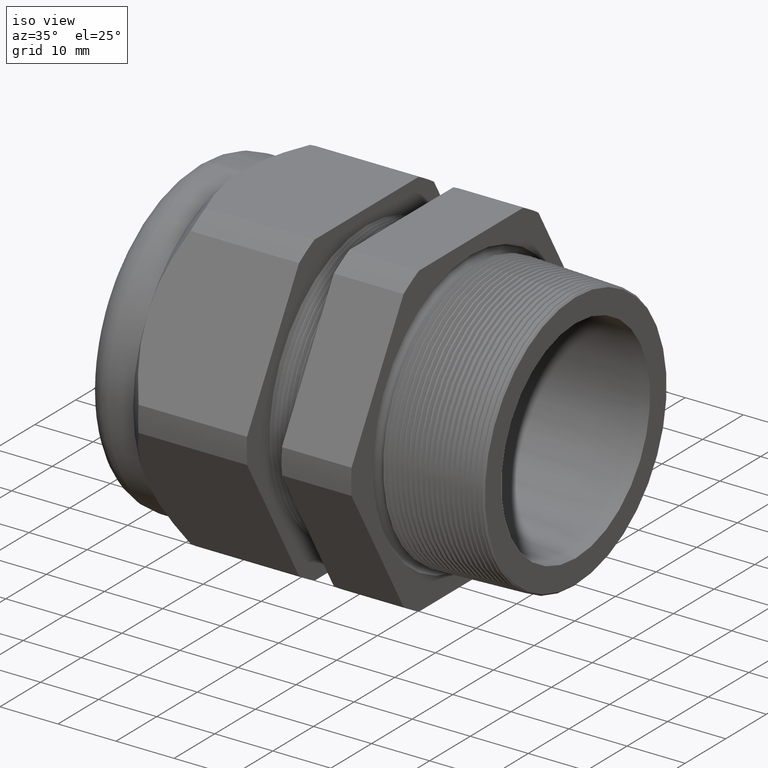
[diagram: clean part render]
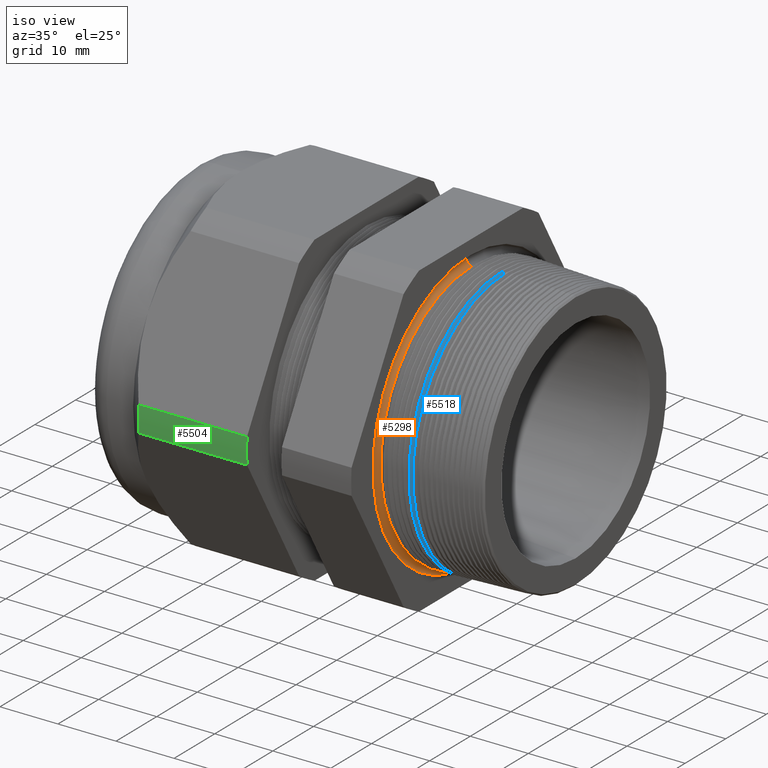
[diagram: same view with three faces highlighted in distinct colors, each labeled with its STEP entity id]
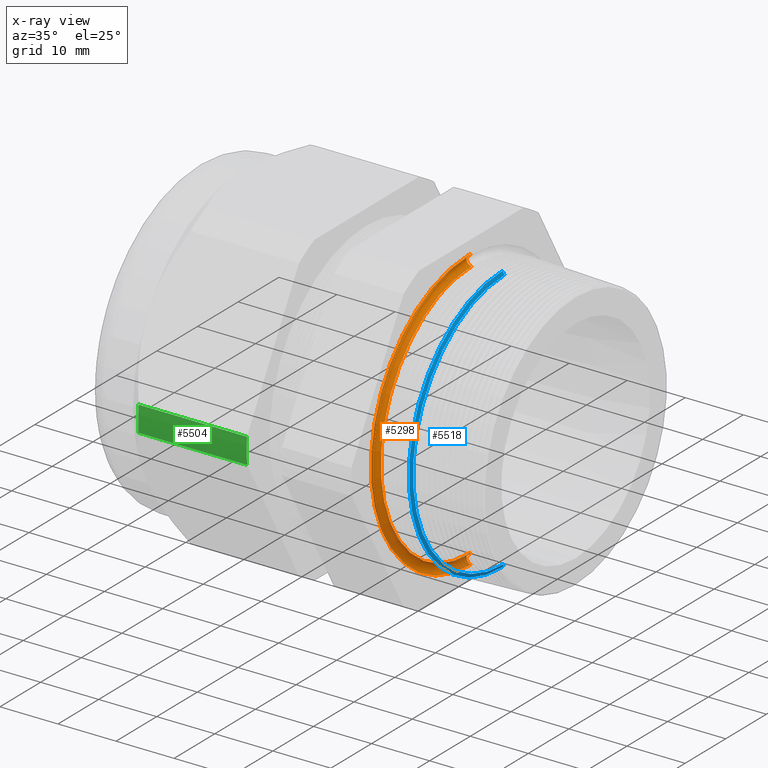
[diagram: x-ray of the same camera — body ghosted, the three highlighted faces saturated]
A machine part, iso view with three faces highlighted in distinct colors.
The next image is the same camera in x-ray (body ghosted, the three faces saturated) — at least one of them is partly hidden behind the body in this view.
Their STEP definitions:

[orange] entity #5298 — the highlighted toroidal blend (fillet) surface has major radius 23.2473 mm and minor (blend) radius 0.889 mm.
#448 = VERTEX_POINT ( 'NONE', #1275 ) ;
#452 = VERTEX_POINT ( 'NONE', #1267 ) ;
#1267 = CARTESIAN_POINT ( 'NONE',  ( -0.3049999999999999400, 0.0000000000000000000, -0.8802480608060996300 ) ) ;
#1275 = CARTESIAN_POINT ( 'NONE',  ( -0.3049999999999999400, 1.077992970121854900E-016, 0.8802480608060996300 ) ) ;
#5234 = EDGE_CURVE ( 'NONE', #452, #5362, #6086, .T. ) ;
#5236 = ORIENTED_EDGE ( 'NONE', *, *, #5234, .F. ) ;
#5293 = ORIENTED_EDGE ( 'NONE', *, *, #5319, .F. ) ;
#5298 = ADVANCED_FACE ( 'NONE', ( #6246 ), #6245, .F. ) ;
#5299 = EDGE_LOOP ( 'NONE', ( #5293, #5315, #5355, #5236 ) ) ;
#5306 = EDGE_CURVE ( 'NONE', #448, #5366, #6239, .T. ) ;
#5315 = ORIENTED_EDGE ( 'NONE', *, *, #5306, .T. ) ;
#5319 = EDGE_CURVE ( 'NONE', #448, #452, #6285, .T. ) ;
#5355 = ORIENTED_EDGE ( 'NONE', *, *, #5363, .T. ) ;
#5362 = VERTEX_POINT ( 'NONE', #6369 ) ;
#5363 = EDGE_CURVE ( 'NONE', #5366, #5362, #6368, .T. ) ;
#5366 = VERTEX_POINT ( 'NONE', #6363 ) ;
#6078 = DIRECTION ( 'NONE',  ( 0.0000000000000000000, 0.0000000000000000000, -1.000000000000000000 ) ) ;
#6079 = DIRECTION ( 'NONE',  ( 0.0000000000000000000, -1.000000000000000000, 0.0000000000000000000 ) ) ;
#6080 = CARTESIAN_POINT ( 'NONE',  ( -0.3049999999999999400, 0.0000000000000000000, -0.9152480608060996600 ) ) ;
#6081 = AXIS2_PLACEMENT_3D ( 'NONE', #6080, #6079, #6078 ) ;
#6086 = CIRCLE ( 'NONE', #6081, 0.03500000000000003800 ) ;
#6236 = DIRECTION ( 'NONE',  ( 0.0000000000000000000, 1.224646799147352500E-016, 1.000000000000000000 ) ) ;
#6237 = DIRECTION ( 'NONE',  ( 0.0000000000000000000, 1.000000000000000000, -1.224646799147353200E-016 ) ) ;
#6238 = AXIS2_PLACEMENT_3D ( 'NONE', #6244, #6237, #6236 ) ;
#6239 = CIRCLE ( 'NONE', #6238, 0.03500000000000003800 ) ;
#6240 = DIRECTION ( 'NONE',  ( 0.0000000000000000000, 0.0000000000000000000, -1.000000000000000000 ) ) ;
#6241 = DIRECTION ( 'NONE',  ( 1.000000000000000000, 0.0000000000000000000, 0.0000000000000000000 ) ) ;
#6242 = CARTESIAN_POINT ( 'NONE',  ( -0.3049999999999999400, 0.0000000000000000000, 0.0000000000000000000 ) ) ;
#6243 = AXIS2_PLACEMENT_3D ( 'NONE', #6242, #6241, #6240 ) ;
#6244 = CARTESIAN_POINT ( 'NONE',  ( -0.3049999999999999400, 1.120855608092012100E-016, 0.9152480608060996600 ) ) ;
#6245 = TOROIDAL_SURFACE ( 'NONE', #6243, 0.9152480608060996600, 0.03499999999999997600 ) ;
#6246 = FACE_OUTER_BOUND ( 'NONE', #5299, .T. ) ;
#6281 = DIRECTION ( 'NONE',  ( 0.0000000000000000000, 0.0000000000000000000, -1.000000000000000000 ) ) ;
#6282 = DIRECTION ( 'NONE',  ( 1.000000000000000000, 0.0000000000000000000, 0.0000000000000000000 ) ) ;
#6283 = CARTESIAN_POINT ( 'NONE',  ( -0.3049999999999999400, 0.0000000000000000000, 0.0000000000000000000 ) ) ;
#6284 = AXIS2_PLACEMENT_3D ( 'NONE', #6283, #6282, #6281 ) ;
#6285 = CIRCLE ( 'NONE', #6284, 0.8802480608060996300 ) ;
#6363 = CARTESIAN_POINT ( 'NONE',  ( -0.3100000000000000000, 1.163278617641008500E-016, 0.9498890769574771500 ) ) ;
#6364 = DIRECTION ( 'NONE',  ( 0.0000000000000000000, 0.0000000000000000000, -1.000000000000000000 ) ) ;
#6365 = DIRECTION ( 'NONE',  ( 1.000000000000000000, 0.0000000000000000000, 0.0000000000000000000 ) ) ;
#6366 = CARTESIAN_POINT ( 'NONE',  ( -0.3100000000000000000, 0.0000000000000000000, 0.0000000000000000000 ) ) ;
#6367 = AXIS2_PLACEMENT_3D ( 'NONE', #6366, #6365, #6364 ) ;
#6368 = CIRCLE ( 'NONE', #6367, 0.9498890769574771500 ) ;
#6369 = CARTESIAN_POINT ( 'NONE',  ( -0.3100000000000000000, 0.0000000000000000000, -0.9498890769574771500 ) ) ;

[blue] entity #5518 — the highlighted conical surface has half-angle 62 deg.
#101 = VERTEX_POINT ( 'NONE', #710 ) ;
#103 = VERTEX_POINT ( 'NONE', #709 ) ;
#161 = EDGE_CURVE ( 'NONE', #103, #514, #814, .T. ) ;
#164 = VERTEX_POINT ( 'NONE', #810 ) ;
#508 = EDGE_CURVE ( 'NONE', #101, #164, #1416, .T. ) ;
#514 = VERTEX_POINT ( 'NONE', #1406 ) ;
#709 = CARTESIAN_POINT ( 'NONE',  ( -0.08373702801092107500, 0.0000000000000000000, 0.8846618589810537600 ) ) ;
#710 = CARTESIAN_POINT ( 'NONE',  ( -0.08373702801092107500, 1.097551618510998100E-016, -0.8846618589810537600 ) ) ;
#810 = CARTESIAN_POINT ( 'NONE',  ( -0.09602701323886063400, 1.111877913967415300E-016, -0.9077759594579546400 ) ) ;
#811 = DIRECTION ( 'NONE',  ( -0.4694715627859006300, 0.0000000000000000000, 0.8829475928589217700 ) ) ;
#812 = VECTOR ( 'NONE', #811, 39.37007874015748900 ) ;
#813 = CARTESIAN_POINT ( 'NONE',  ( -0.09999999999999996400, 0.0000000000000000000, 0.9152480608060996600 ) ) ;
#814 = LINE ( 'NONE', #813, #812 ) ;
#1406 = CARTESIAN_POINT ( 'NONE',  ( -0.09602701323886063400, 0.0000000000000000000, 0.9077759594579546400 ) ) ;
#1413 = DIRECTION ( 'NONE',  ( -0.4694715627859006300, 1.081298943409538900E-016, -0.8829475928589217700 ) ) ;
#1414 = VECTOR ( 'NONE', #1413, 39.37007874015748900 ) ;
#1415 = CARTESIAN_POINT ( 'NONE',  ( -0.09999999999999996400, 1.120855608092012100E-016, -0.9152480608060996600 ) ) ;
#1416 = LINE ( 'NONE', #1415, #1414 ) ;
#3404 = ORIENTED_EDGE ( 'NONE', *, *, #161, .T. ) ;
#3405 = ORIENTED_EDGE ( 'NONE', *, *, #5745, .T. ) ;
#4058 = DIRECTION ( 'NONE',  ( 0.0000000000000000000, 0.0000000000000000000, -1.000000000000000000 ) ) ;
#4059 = DIRECTION ( 'NONE',  ( 1.000000000000000000, 0.0000000000000000000, 0.0000000000000000000 ) ) ;
#4060 = AXIS2_PLACEMENT_3D ( 'NONE', #4066, #4059, #4058 ) ;
#4061 = CIRCLE ( 'NONE', #4060, 0.8846618589810537600 ) ;
#4066 = CARTESIAN_POINT ( 'NONE',  ( -0.08373702801092107500, 0.0000000000000000000, 0.0000000000000000000 ) ) ;
#4116 = CARTESIAN_POINT ( 'NONE',  ( -0.09602701323886063400, 0.0000000000000000000, 0.0000000000000000000 ) ) ;
#4118 = AXIS2_PLACEMENT_3D ( 'NONE', #4116, #4367, #4361 ) ;
#4190 = DIRECTION ( 'NONE',  ( 0.0000000000000000000, 0.0000000000000000000, 1.000000000000000000 ) ) ;
#4191 = DIRECTION ( 'NONE',  ( -1.000000000000000000, 0.0000000000000000000, 0.0000000000000000000 ) ) ;
#4192 = AXIS2_PLACEMENT_3D ( 'NONE', #4198, #4191, #4190 ) ;
#4193 = CONICAL_SURFACE ( 'NONE', #4192, 0.9152480608060996600, 1.082104136236473200 ) ;
#4194 = FACE_OUTER_BOUND ( 'NONE', #5508, .T. ) ;
#4198 = CARTESIAN_POINT ( 'NONE',  ( -0.09999999999999996400, 0.0000000000000000000, 0.0000000000000000000 ) ) ;
#4361 = DIRECTION ( 'NONE',  ( 0.0000000000000000000, 0.0000000000000000000, 1.000000000000000000 ) ) ;
#4367 = DIRECTION ( 'NONE',  ( 1.000000000000000000, 0.0000000000000000000, 0.0000000000000000000 ) ) ;
#4618 = CIRCLE ( 'NONE', #4118, 0.9077759594579546400 ) ;
#5465 = ORIENTED_EDGE ( 'NONE', *, *, #508, .F. ) ;
#5471 = ORIENTED_EDGE ( 'NONE', *, *, #5472, .F. ) ;
#5472 = EDGE_CURVE ( 'NONE', #103, #101, #4061, .T. ) ;
#5508 = EDGE_LOOP ( 'NONE', ( #5465, #5471, #3404, #3405 ) ) ;
#5518 = ADVANCED_FACE ( 'NONE', ( #4194 ), #4193, .T. ) ;
#5745 = EDGE_CURVE ( 'NONE', #514, #164, #4618, .T. ) ;

[green] entity #5504 — the highlighted cylindrical surface (partial cylindrical patch) has radius 29.4627 mm, axis along (-1, 0, 0).
#3901 = CARTESIAN_POINT ( 'NONE',  ( -1.018802799999999600, -1.156720106887058100, 0.08650200473511256100 ) ) ;
#3902 = DIRECTION ( 'NONE',  ( -1.000000000000000000, 0.0000000000000000000, 0.0000000000000000000 ) ) ;
#3903 = VECTOR ( 'NONE', #3902, 39.37007874015748100 ) ;
#3904 = CARTESIAN_POINT ( 'NONE',  ( 0.4000000000000000800, -1.156720106887058100, 0.08650200473511256100 ) ) ;
#3905 = LINE ( 'NONE', #3904, #3903 ) ;
#3911 = CARTESIAN_POINT ( 'NONE',  ( -1.754341999999999200, -1.156720106887058100, 0.08650200473511249200 ) ) ;
#3912 = DIRECTION ( 'NONE',  ( 0.0000000000000000000, 0.0000000000000000000, -1.000000000000000000 ) ) ;
#3913 = DIRECTION ( 'NONE',  ( 1.000000000000000000, 0.0000000000000000000, 0.0000000000000000000 ) ) ;
#3914 = CARTESIAN_POINT ( 'NONE',  ( -1.018802799999999600, 0.0000000000000000000, 0.0000000000000000000 ) ) ;
#3915 = AXIS2_PLACEMENT_3D ( 'NONE', #3914, #3913, #3912 ) ;
#3916 = CIRCLE ( 'NONE', #3915, 1.159950000000000000 ) ;
#4162 = DIRECTION ( 'NONE',  ( 0.0000000000000000000, 0.0000000000000000000, 1.000000000000000000 ) ) ;
#4163 = DIRECTION ( 'NONE',  ( -1.000000000000000000, 0.0000000000000000000, 0.0000000000000000000 ) ) ;
#4164 = CARTESIAN_POINT ( 'NONE',  ( 0.4000000000000000800, 0.0000000000000000000, 0.0000000000000000000 ) ) ;
#4165 = AXIS2_PLACEMENT_3D ( 'NONE', #4164, #4163, #4162 ) ;
#4166 = CYLINDRICAL_SURFACE ( 'NONE', #4165, 1.159950000000000000 ) ;
#4167 = FACE_OUTER_BOUND ( 'NONE', #5324, .T. ) ;
#5324 = EDGE_LOOP ( 'NONE', ( #5502, #5374, #5381, #5376 ) ) ;
#5357 = EDGE_CURVE ( 'NONE', #5367, #5368, #6334, .T. ) ;
#5367 = VERTEX_POINT ( 'NONE', #6362 ) ;
#5368 = VERTEX_POINT ( 'NONE', #6361 ) ;
#5369 = EDGE_CURVE ( 'NONE', #5378, #5368, #6360, .T. ) ;
#5374 = ORIENTED_EDGE ( 'NONE', *, *, #5369, .T. ) ;
#5376 = ORIENTED_EDGE ( 'NONE', *, *, #5377, .F. ) ;
#5377 = EDGE_CURVE ( 'NONE', #5383, #5367, #3916, .T. ) ;
#5378 = VERTEX_POINT ( 'NONE', #3911 ) ;
#5381 = ORIENTED_EDGE ( 'NONE', *, *, #5357, .F. ) ;
#5382 = EDGE_CURVE ( 'NONE', #5383, #5378, #3905, .T. ) ;
#5383 = VERTEX_POINT ( 'NONE', #3901 ) ;
#5502 = ORIENTED_EDGE ( 'NONE', *, *, #5382, .T. ) ;
#5504 = ADVANCED_FACE ( 'NONE', ( #4167 ), #4166, .T. ) ;
#6327 = DIRECTION ( 'NONE',  ( -1.000000000000000000, 0.0000000000000000000, 0.0000000000000000000 ) ) ;
#6328 = VECTOR ( 'NONE', #6327, 39.37007874015748100 ) ;
#6329 = CARTESIAN_POINT ( 'NONE',  ( 0.4000000000000000800, -1.156720106887057800, -0.08650200473511345000 ) ) ;
#6334 = LINE ( 'NONE', #6329, #6328 ) ;
#6356 = DIRECTION ( 'NONE',  ( 0.0000000000000000000, 0.0000000000000000000, -1.000000000000000000 ) ) ;
#6357 = DIRECTION ( 'NONE',  ( 1.000000000000000000, 0.0000000000000000000, 0.0000000000000000000 ) ) ;
#6358 = CARTESIAN_POINT ( 'NONE',  ( -1.754341999999999600, 0.0000000000000000000, 0.0000000000000000000 ) ) ;
#6359 = AXIS2_PLACEMENT_3D ( 'NONE', #6358, #6357, #6356 ) ;
#6360 = CIRCLE ( 'NONE', #6359, 1.159950000000000000 ) ;
#6361 = CARTESIAN_POINT ( 'NONE',  ( -1.754341999999999600, -1.156720106887057800, -0.08650200473511345000 ) ) ;
#6362 = CARTESIAN_POINT ( 'NONE',  ( -1.018802799999999600, -1.156720106887057800, -0.08650200473511345000 ) ) ;